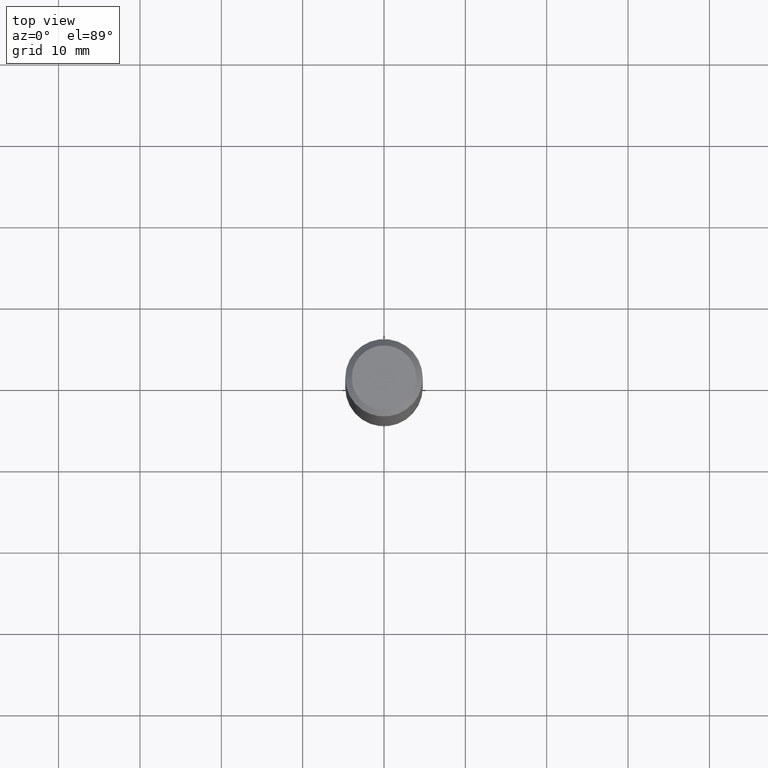
[diagram: clean part render]
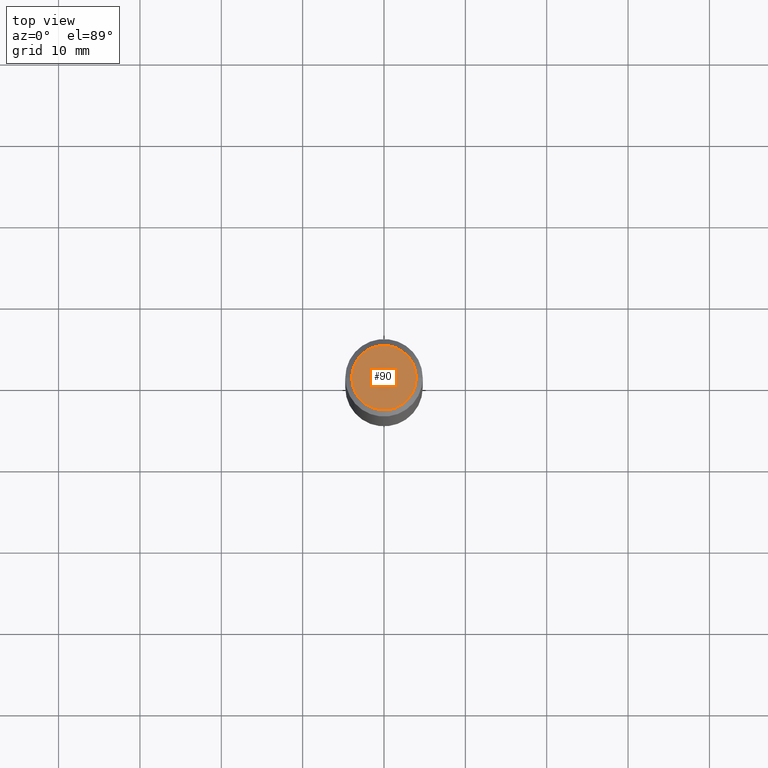
[diagram: same view with one face highlighted and labeled with its STEP entity id]
A machine part, top view. The second image highlights one B-rep face of the part: STEP entity #90.
In plain terms, the highlighted planar face has unit normal (0, -0, -1).
Its self-contained STEP definition (entity closure, byte-faithful):
#11 = ORIENTED_EDGE ( 'NONE', *, *, #307, .T. ) ;
#16 = EDGE_LOOP ( 'NONE', ( #432, #11 ) ) ;
#40 = CARTESIAN_POINT ( 'NONE',  ( 1.231246885473085875E-44, -1.757894238219357858E-30, -5.034809204513210114E-16 ) ) ;
#46 = AXIS2_PLACEMENT_3D ( 'NONE', #141, #419, #66 ) ;
#66 = DIRECTION ( 'NONE',  ( 1.000000000000000000, -6.982962677686265922E-15, 4.891558762689333505E-29 ) ) ;
#69 = CARTESIAN_POINT ( 'NONE',  ( 0.1562500000000003608, -1.233702489286408115E-15, -5.034809204513129255E-16 ) ) ;
#75 = CARTESIAN_POINT ( 'NONE',  ( -0.1562500000000003608, 1.145642314307902935E-15, -5.034809204513289000E-16 ) ) ;
#84 = AXIS2_PLACEMENT_3D ( 'NONE', #40, #420, #279 ) ;
#90 = ADVANCED_FACE ( 'NONE', ( #276 ), #306, .F. ) ;
#117 = CIRCLE ( 'NONE', #46, 0.1562500000000003608 ) ;
#131 = CIRCLE ( 'NONE', #84, 0.1562500000000003608 ) ;
#141 = CARTESIAN_POINT ( 'NONE',  ( 1.231246885473085875E-44, -1.757894238219357858E-30, -5.034809204513210114E-16 ) ) ;
#255 = VERTEX_POINT ( 'NONE', #75 ) ;
#271 = DIRECTION ( 'NONE',  ( -1.000000000000000000, 6.982962677686265922E-15, -4.876176775795935793E-29 ) ) ;
#276 = FACE_OUTER_BOUND ( 'NONE', #16, .T. ) ;
#277 = DIRECTION ( 'NONE',  ( 2.438088387897960049E-29, -3.491481338843145188E-15, -1.000000000000000000 ) ) ;
#279 = DIRECTION ( 'NONE',  ( 1.000000000000000000, -6.982962677686265922E-15, 4.891558762689333505E-29 ) ) ;
#304 = AXIS2_PLACEMENT_3D ( 'NONE', #406, #277, #271 ) ;
#306 = PLANE ( 'NONE',  #304 ) ;
#307 = EDGE_CURVE ( 'NONE', #334, #255, #131, .T. ) ;
#334 = VERTEX_POINT ( 'NONE', #69 ) ;
#393 = EDGE_CURVE ( 'NONE', #255, #334, #117, .T. ) ;
#406 = CARTESIAN_POINT ( 'NONE',  ( 6.156234427365429373E-45, -8.789471191096789290E-31, -2.517404602256605057E-16 ) ) ;
#419 = DIRECTION ( 'NONE',  ( -2.445468806185136597E-29, 3.491481338843145583E-15, 1.000000000000000000 ) ) ;
#420 = DIRECTION ( 'NONE',  ( -2.445468806185136597E-29, 3.491481338843145583E-15, 1.000000000000000000 ) ) ;
#432 = ORIENTED_EDGE ( 'NONE', *, *, #393, .T. ) ;